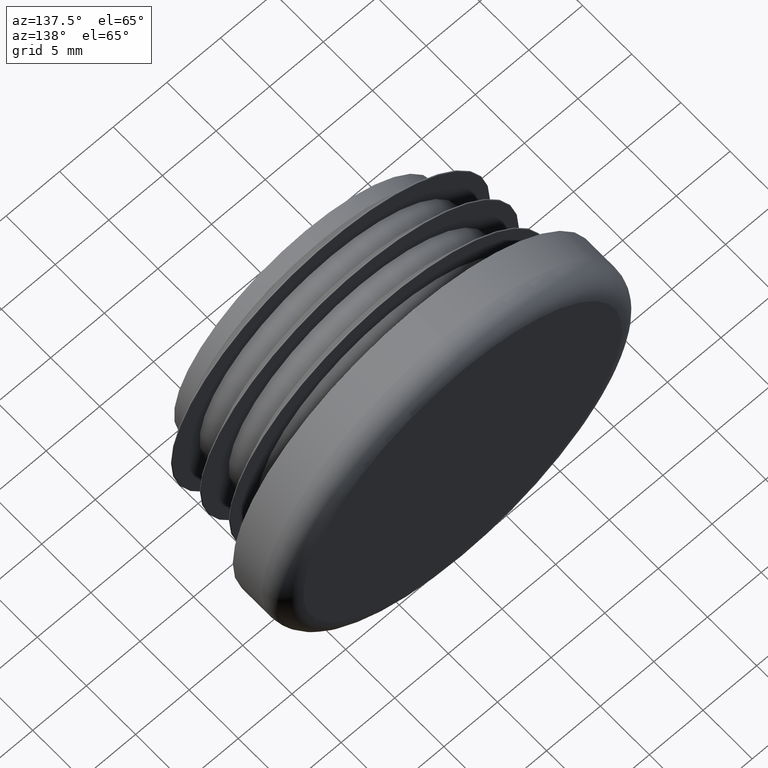
[diagram: clean part render]
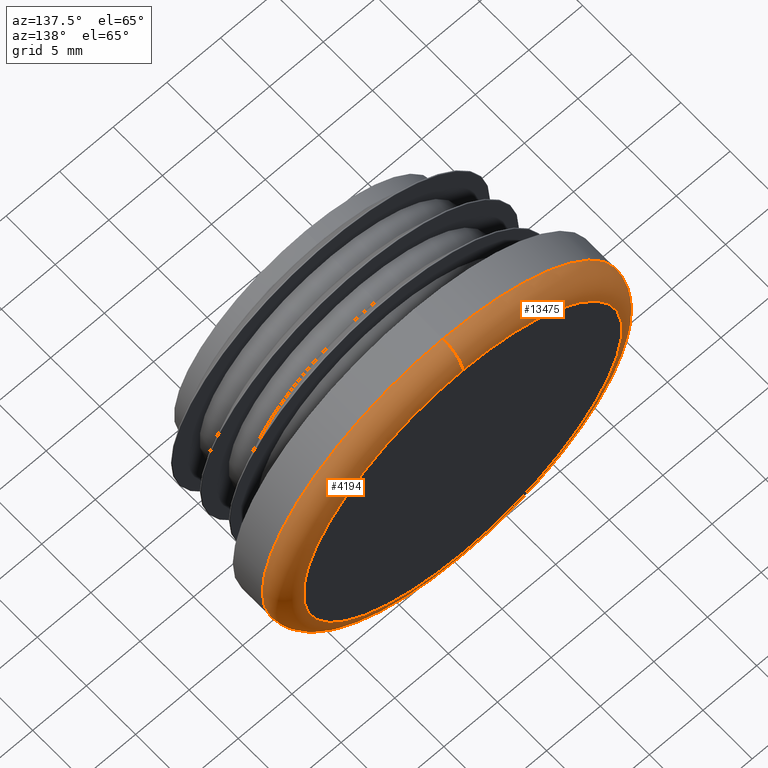
[diagram: same view with one multi-face feature highlighted, each face labeled with its STEP entity id]
A machine part, auxiliary view. The highlighted faces form ONE feature: a constant-radius fillet chain: 2 tangent blend faces with common blend radius 2 mm. The faces share edges in the B-rep.
Their STEP definitions:
[1] entity #4194 (Torus):
#175 = AXIS2_PLACEMENT_3D ( 'NONE', #2243, #1035, #8662 ) ;
#520 = AXIS2_PLACEMENT_3D ( 'NONE', #10609, #6276, #13705 ) ;
#569 = ORIENTED_EDGE ( 'NONE', *, *, #3767, .F. ) ;
#626 = VERTEX_POINT ( 'NONE', #3226 ) ;
#763 = CARTESIAN_POINT ( 'NONE',  ( 0.000000000000000000, 16.00000000000000000, 0.000000000000000000 ) ) ;
#1035 = DIRECTION ( 'NONE',  ( 0.000000000000000000, 1.000000000000000000, 0.000000000000000000 ) ) ;
#2243 = CARTESIAN_POINT ( 'NONE',  ( 0.000000000000000000, 14.00000000000000000, 0.000000000000000000 ) ) ;
#2464 = EDGE_CURVE ( 'NONE', #626, #3707, #6742, .T. ) ;
#2472 = VERTEX_POINT ( 'NONE', #6409 ) ;
#2662 = EDGE_CURVE ( 'NONE', #2472, #6294, #4408, .T. ) ;
#3096 = ORIENTED_EDGE ( 'NONE', *, *, #2464, .T. ) ;
#3226 = CARTESIAN_POINT ( 'NONE',  ( 0.000000000000000000, 14.00000000000000000, -16.84999999999999787 ) ) ;
#3675 = CARTESIAN_POINT ( 'NONE',  ( 1.941065176648554701E-15, 16.00000000000000000, -14.84999999999999609 ) ) ;
#3707 = VERTEX_POINT ( 'NONE', #3675 ) ;
#3767 = EDGE_CURVE ( 'NONE', #6294, #3707, #11232, .T. ) ;
#4194 = ADVANCED_FACE ( 'NONE', ( #4389 ), #8222, .T. ) ;
#4389 = FACE_OUTER_BOUND ( 'NONE', #10416, .T. ) ;
#4408 = CIRCLE ( 'NONE', #7375, 2.000000000000000000 ) ;
#5176 = DIRECTION ( 'NONE',  ( 0.000000000000000000, 0.000000000000000000, 1.000000000000000000 ) ) ;
#5893 = DIRECTION ( 'NONE',  ( -0.000000000000000000, -1.000000000000000000, -0.000000000000000000 ) ) ;
#6276 = DIRECTION ( 'NONE',  ( 1.000000000000000000, -0.000000000000000000, 1.224646799147353207E-16 ) ) ;
#6294 = VERTEX_POINT ( 'NONE', #10710 ) ;
#6409 = CARTESIAN_POINT ( 'NONE',  ( 2.063529856563289455E-15, 14.00000000000000000, 16.84999999999999787 ) ) ;
#6742 = CIRCLE ( 'NONE', #520, 2.000000000000000000 ) ;
#7367 = ORIENTED_EDGE ( 'NONE', *, *, #10759, .F. ) ;
#7375 = AXIS2_PLACEMENT_3D ( 'NONE', #12138, #10132, #8961 ) ;
#7925 = CIRCLE ( 'NONE', #8351, 16.84999999999999787 ) ;
#8222 = TOROIDAL_SURFACE ( 'NONE', #175, 14.84999999999999609, 2.000000000000000000 ) ;
#8351 = AXIS2_PLACEMENT_3D ( 'NONE', #12331, #5893, #9189 ) ;
#8662 = DIRECTION ( 'NONE',  ( 0.000000000000000000, 0.000000000000000000, 1.000000000000000000 ) ) ;
#8961 = DIRECTION ( 'NONE',  ( 0.000000000000000000, 0.000000000000000000, 1.000000000000000000 ) ) ;
#9107 = ORIENTED_EDGE ( 'NONE', *, *, #2662, .F. ) ;
#9189 = DIRECTION ( 'NONE',  ( 0.000000000000000000, 0.000000000000000000, 1.000000000000000000 ) ) ;
#9768 = AXIS2_PLACEMENT_3D ( 'NONE', #763, #11552, #5176 ) ;
#10132 = DIRECTION ( 'NONE',  ( -1.000000000000000000, 0.000000000000000000, 0.000000000000000000 ) ) ;
#10416 = EDGE_LOOP ( 'NONE', ( #7367, #3096, #569, #9107 ) ) ;
#10609 = CARTESIAN_POINT ( 'NONE',  ( 1.818600496733819159E-15, 14.00000000000000000, -14.84999999999999609 ) ) ;
#10710 = CARTESIAN_POINT ( 'NONE',  ( 0.000000000000000000, 16.00000000000000000, 14.84999999999999609 ) ) ;
#10759 = EDGE_CURVE ( 'NONE', #626, #2472, #7925, .T. ) ;
#11232 = CIRCLE ( 'NONE', #9768, 14.84999999999999609 ) ;
#11552 = DIRECTION ( 'NONE',  ( 0.000000000000000000, 1.000000000000000000, 0.000000000000000000 ) ) ;
#12138 = CARTESIAN_POINT ( 'NONE',  ( 0.000000000000000000, 14.00000000000000000, 14.84999999999999609 ) ) ;
#12331 = CARTESIAN_POINT ( 'NONE',  ( 0.000000000000000000, 14.00000000000000000, 0.000000000000000000 ) ) ;
#13705 = DIRECTION ( 'NONE',  ( 1.224646799147352468E-16, 0.000000000000000000, -1.000000000000000000 ) ) ;
[2] entity #13475 (Torus):
#520 = AXIS2_PLACEMENT_3D ( 'NONE', #10609, #6276, #13705 ) ;
#626 = VERTEX_POINT ( 'NONE', #3226 ) ;
#679 = DIRECTION ( 'NONE',  ( -0.000000000000000000, -1.000000000000000000, -0.000000000000000000 ) ) ;
#2110 = DIRECTION ( 'NONE',  ( 0.000000000000000000, 1.000000000000000000, 0.000000000000000000 ) ) ;
#2464 = EDGE_CURVE ( 'NONE', #626, #3707, #6742, .T. ) ;
#2472 = VERTEX_POINT ( 'NONE', #6409 ) ;
#2662 = EDGE_CURVE ( 'NONE', #2472, #6294, #4408, .T. ) ;
#3226 = CARTESIAN_POINT ( 'NONE',  ( 0.000000000000000000, 14.00000000000000000, -16.84999999999999787 ) ) ;
#3655 = EDGE_LOOP ( 'NONE', ( #8259, #4306, #11488, #13286 ) ) ;
#3675 = CARTESIAN_POINT ( 'NONE',  ( 1.941065176648554701E-15, 16.00000000000000000, -14.84999999999999609 ) ) ;
#3707 = VERTEX_POINT ( 'NONE', #3675 ) ;
#4306 = ORIENTED_EDGE ( 'NONE', *, *, #6494, .F. ) ;
#4408 = CIRCLE ( 'NONE', #7375, 2.000000000000000000 ) ;
#5068 = FACE_OUTER_BOUND ( 'NONE', #3655, .T. ) ;
#5552 = DIRECTION ( 'NONE',  ( 0.000000000000000000, 0.000000000000000000, 1.000000000000000000 ) ) ;
#5554 = CARTESIAN_POINT ( 'NONE',  ( 0.000000000000000000, 16.00000000000000000, 0.000000000000000000 ) ) ;
#6055 = AXIS2_PLACEMENT_3D ( 'NONE', #10396, #679, #10302 ) ;
#6276 = DIRECTION ( 'NONE',  ( 1.000000000000000000, -0.000000000000000000, 1.224646799147353207E-16 ) ) ;
#6294 = VERTEX_POINT ( 'NONE', #10710 ) ;
#6409 = CARTESIAN_POINT ( 'NONE',  ( 2.063529856563289455E-15, 14.00000000000000000, 16.84999999999999787 ) ) ;
#6494 = EDGE_CURVE ( 'NONE', #2472, #626, #10548, .T. ) ;
#6742 = CIRCLE ( 'NONE', #520, 2.000000000000000000 ) ;
#7375 = AXIS2_PLACEMENT_3D ( 'NONE', #12138, #10132, #8961 ) ;
#8259 = ORIENTED_EDGE ( 'NONE', *, *, #2464, .F. ) ;
#8482 = CARTESIAN_POINT ( 'NONE',  ( 0.000000000000000000, 14.00000000000000000, 0.000000000000000000 ) ) ;
#8747 = DIRECTION ( 'NONE',  ( 0.000000000000000000, 0.000000000000000000, 1.000000000000000000 ) ) ;
#8961 = DIRECTION ( 'NONE',  ( 0.000000000000000000, 0.000000000000000000, 1.000000000000000000 ) ) ;
#9784 = DIRECTION ( 'NONE',  ( 0.000000000000000000, 1.000000000000000000, 0.000000000000000000 ) ) ;
#10132 = DIRECTION ( 'NONE',  ( -1.000000000000000000, 0.000000000000000000, 0.000000000000000000 ) ) ;
#10233 = TOROIDAL_SURFACE ( 'NONE', #11693, 14.84999999999999609, 2.000000000000000000 ) ;
#10302 = DIRECTION ( 'NONE',  ( 0.000000000000000000, 0.000000000000000000, 1.000000000000000000 ) ) ;
#10396 = CARTESIAN_POINT ( 'NONE',  ( 0.000000000000000000, 14.00000000000000000, 0.000000000000000000 ) ) ;
#10548 = CIRCLE ( 'NONE', #6055, 16.84999999999999787 ) ;
#10609 = CARTESIAN_POINT ( 'NONE',  ( 1.818600496733819159E-15, 14.00000000000000000, -14.84999999999999609 ) ) ;
#10710 = CARTESIAN_POINT ( 'NONE',  ( 0.000000000000000000, 16.00000000000000000, 14.84999999999999609 ) ) ;
#10970 = EDGE_CURVE ( 'NONE', #3707, #6294, #12912, .T. ) ;
#11141 = AXIS2_PLACEMENT_3D ( 'NONE', #5554, #9784, #8747 ) ;
#11488 = ORIENTED_EDGE ( 'NONE', *, *, #2662, .T. ) ;
#11693 = AXIS2_PLACEMENT_3D ( 'NONE', #8482, #2110, #5552 ) ;
#12138 = CARTESIAN_POINT ( 'NONE',  ( 0.000000000000000000, 14.00000000000000000, 14.84999999999999609 ) ) ;
#12912 = CIRCLE ( 'NONE', #11141, 14.84999999999999609 ) ;
#13286 = ORIENTED_EDGE ( 'NONE', *, *, #10970, .F. ) ;
#13475 = ADVANCED_FACE ( 'NONE', ( #5068 ), #10233, .T. ) ;
#13705 = DIRECTION ( 'NONE',  ( 1.224646799147352468E-16, 0.000000000000000000, -1.000000000000000000 ) ) ;